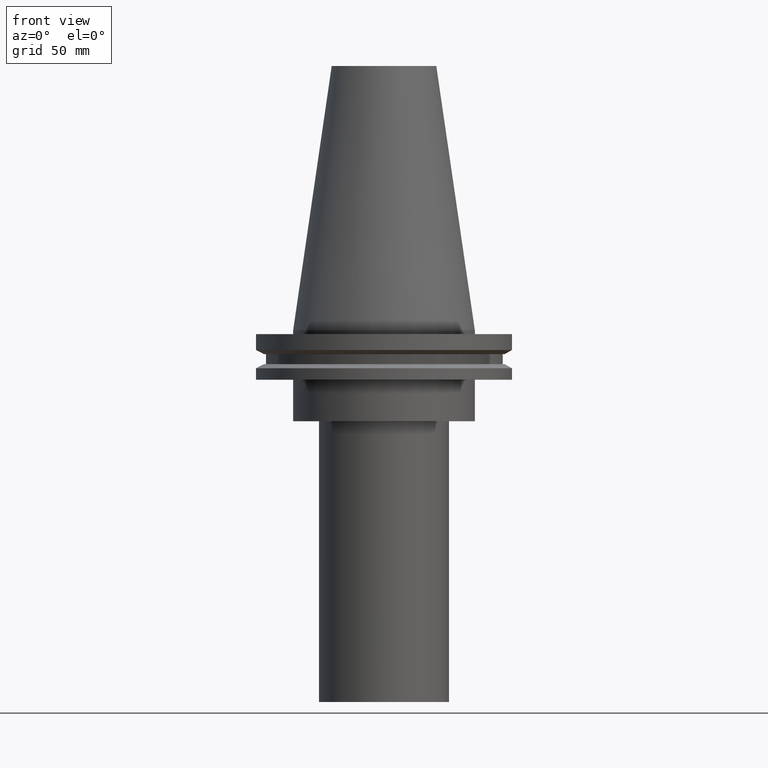
[diagram: clean part render]
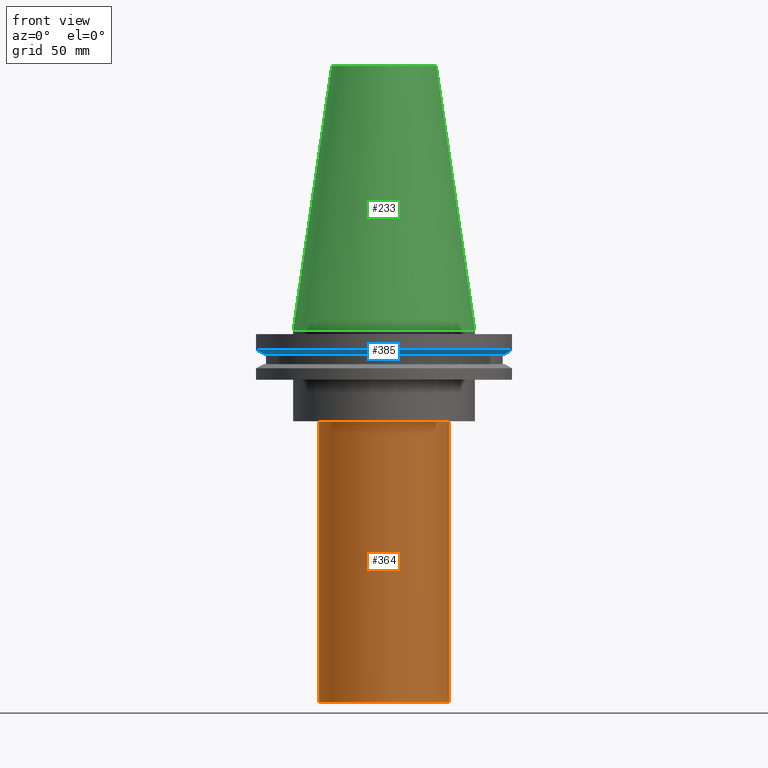
[diagram: same view with three faces highlighted in distinct colors, each labeled with its STEP entity id]
A machine part, front view with three faces highlighted in distinct colors.
Their STEP definitions:

[orange] entity #364 — the highlighted cylindrical surface (bore or boss wall) has radius 25 mm, axis along (-0, -0, 1).
#2 = CYLINDRICAL_SURFACE ( 'NONE', #19, 25.00000000000000000 ) ;
#19 = AXIS2_PLACEMENT_3D ( 'NONE', #243, #173, #180 ) ;
#93 = VERTEX_POINT ( 'NONE', #286 ) ;
#129 = DIRECTION ( 'NONE',  ( -0.000000000000000000, -0.000000000000000000, 1.000000000000000000 ) ) ;
#137 = CARTESIAN_POINT ( 'NONE',  ( 0.000000000000000000, 0.000000000000000000, -35.00000000000000000 ) ) ;
#151 = FACE_OUTER_BOUND ( 'NONE', #348, .T. ) ;
#173 = DIRECTION ( 'NONE',  ( -0.000000000000000000, -0.000000000000000000, 1.000000000000000000 ) ) ;
#180 = DIRECTION ( 'NONE',  ( 1.000000000000000000, 0.000000000000000000, 0.000000000000000000 ) ) ;
#185 = EDGE_LOOP ( 'NONE', ( #301 ) ) ;
#196 = EDGE_CURVE ( 'NONE', #213, #213, #297, .T. ) ;
#200 = EDGE_CURVE ( 'NONE', #93, #93, #218, .T. ) ;
#213 = VERTEX_POINT ( 'NONE', #342 ) ;
#215 = DIRECTION ( 'NONE',  ( -0.000000000000000000, -0.000000000000000000, 1.000000000000000000 ) ) ;
#218 = CIRCLE ( 'NONE', #331, 25.00000000000000000 ) ;
#238 = ORIENTED_EDGE ( 'NONE', *, *, #196, .F. ) ;
#243 = CARTESIAN_POINT ( 'NONE',  ( 0.000000000000000000, 0.000000000000000000, 0.000000000000000000 ) ) ;
#256 = DIRECTION ( 'NONE',  ( 1.000000000000000000, 0.000000000000000000, 0.000000000000000000 ) ) ;
#258 = CARTESIAN_POINT ( 'NONE',  ( 0.000000000000000000, 0.000000000000000000, -142.9999999999999716 ) ) ;
#272 = FACE_OUTER_BOUND ( 'NONE', #185, .T. ) ;
#280 = AXIS2_PLACEMENT_3D ( 'NONE', #137, #129, #256 ) ;
#286 = CARTESIAN_POINT ( 'NONE',  ( 25.00000000000000000, 0.000000000000000000, -142.9999999999999716 ) ) ;
#297 = CIRCLE ( 'NONE', #280, 25.00000000000000000 ) ;
#301 = ORIENTED_EDGE ( 'NONE', *, *, #200, .T. ) ;
#331 = AXIS2_PLACEMENT_3D ( 'NONE', #258, #215, #373 ) ;
#342 = CARTESIAN_POINT ( 'NONE',  ( 25.00000000000000000, 0.000000000000000000, -35.00000000000000000 ) ) ;
#348 = EDGE_LOOP ( 'NONE', ( #238 ) ) ;
#364 = ADVANCED_FACE ( 'NONE', ( #151, #272 ), #2, .T. ) ;
#373 = DIRECTION ( 'NONE',  ( 1.000000000000000000, 0.000000000000000000, 0.000000000000000000 ) ) ;

[blue] entity #385 — the highlighted conical surface has half-angle 60 deg.
#1 = ORIENTED_EDGE ( 'NONE', *, *, #270, .F. ) ;
#47 = DIRECTION ( 'NONE',  ( 1.000000000000000000, 0.000000000000000000, 0.000000000000000000 ) ) ;
#59 = VERTEX_POINT ( 'NONE', #338 ) ;
#118 = FACE_OUTER_BOUND ( 'NONE', #142, .T. ) ;
#120 = CARTESIAN_POINT ( 'NONE',  ( 0.000000000000000000, 0.000000000000000000, -9.204999999999991189 ) ) ;
#142 = EDGE_LOOP ( 'NONE', ( #1 ) ) ;
#145 = AXIS2_PLACEMENT_3D ( 'NONE', #190, #314, #160 ) ;
#160 = DIRECTION ( 'NONE',  ( 1.000000000000000000, 0.000000000000000000, 0.000000000000000000 ) ) ;
#163 = CONICAL_SURFACE ( 'NONE', #187, 46.43919780457007818, 1.047197551196575205 ) ;
#174 = DIRECTION ( 'NONE',  ( -0.000000000000000000, -0.000000000000000000, 1.000000000000000000 ) ) ;
#187 = AXIS2_PLACEMENT_3D ( 'NONE', #120, #174, #358 ) ;
#190 = CARTESIAN_POINT ( 'NONE',  ( 0.000000000000000000, 0.000000000000000000, -9.204999999999991189 ) ) ;
#194 = CIRCLE ( 'NONE', #145, 46.43919780457007818 ) ;
#199 = CIRCLE ( 'NONE', #202, 49.21500000000000341 ) ;
#202 = AXIS2_PLACEMENT_3D ( 'NONE', #237, #294, #47 ) ;
#211 = FACE_BOUND ( 'NONE', #244, .T. ) ;
#224 = EDGE_CURVE ( 'NONE', #253, #253, #194, .T. ) ;
#237 = CARTESIAN_POINT ( 'NONE',  ( 0.000000000000000000, 0.000000000000000000, -7.602389855251287187 ) ) ;
#244 = EDGE_LOOP ( 'NONE', ( #394 ) ) ;
#253 = VERTEX_POINT ( 'NONE', #334 ) ;
#270 = EDGE_CURVE ( 'NONE', #59, #59, #199, .T. ) ;
#294 = DIRECTION ( 'NONE',  ( -0.000000000000000000, -0.000000000000000000, 1.000000000000000000 ) ) ;
#314 = DIRECTION ( 'NONE',  ( -0.000000000000000000, -0.000000000000000000, 1.000000000000000000 ) ) ;
#334 = CARTESIAN_POINT ( 'NONE',  ( 46.43919780457007818, 0.000000000000000000, -9.204999999999991189 ) ) ;
#338 = CARTESIAN_POINT ( 'NONE',  ( 49.21500000000000341, 0.000000000000000000, -7.602389855251287187 ) ) ;
#358 = DIRECTION ( 'NONE',  ( 1.000000000000000000, 0.000000000000000000, 0.000000000000000000 ) ) ;
#385 = ADVANCED_FACE ( 'NONE', ( #118, #211 ), #163, .T. ) ;
#394 = ORIENTED_EDGE ( 'NONE', *, *, #224, .T. ) ;

[green] entity #233 — the highlighted conical surface has half-angle 8.297 deg.
#9 = CARTESIAN_POINT ( 'NONE',  ( 0.000000000000000000, 0.000000000000000000, 0.000000000000000000 ) ) ;
#16 = CARTESIAN_POINT ( 'NONE',  ( 0.000000000000000000, 0.000000000000000000, 101.5999999999999801 ) ) ;
#38 = CARTESIAN_POINT ( 'NONE',  ( 0.000000000000000000, 0.000000000000000000, 0.000000000000000000 ) ) ;
#54 = ORIENTED_EDGE ( 'NONE', *, *, #112, .T. ) ;
#78 = CIRCLE ( 'NONE', #234, 34.92499999999999005 ) ;
#81 = EDGE_CURVE ( 'NONE', #236, #236, #269, .T. ) ;
#82 = CARTESIAN_POINT ( 'NONE',  ( 20.10819343178871321, 0.000000000000000000, 101.5999999999999801 ) ) ;
#86 = EDGE_LOOP ( 'NONE', ( #54 ) ) ;
#112 = EDGE_CURVE ( 'NONE', #189, #189, #78, .T. ) ;
#131 = DIRECTION ( 'NONE',  ( 1.000000000000000000, 0.000000000000000000, 0.000000000000000000 ) ) ;
#149 = CONICAL_SURFACE ( 'NONE', #375, 34.92499999999999005, 0.1448138465474119452 ) ;
#184 = EDGE_LOOP ( 'NONE', ( #354 ) ) ;
#189 = VERTEX_POINT ( 'NONE', #255 ) ;
#223 = DIRECTION ( 'NONE',  ( -0.000000000000000000, -0.000000000000000000, 1.000000000000000000 ) ) ;
#225 = DIRECTION ( 'NONE',  ( -0.000000000000000000, -0.000000000000000000, 1.000000000000000000 ) ) ;
#233 = ADVANCED_FACE ( 'NONE', ( #316, #287 ), #149, .T. ) ;
#234 = AXIS2_PLACEMENT_3D ( 'NONE', #9, #225, #131 ) ;
#236 = VERTEX_POINT ( 'NONE', #82 ) ;
#249 = AXIS2_PLACEMENT_3D ( 'NONE', #16, #223, #343 ) ;
#255 = CARTESIAN_POINT ( 'NONE',  ( 34.92499999999999005, 0.000000000000000000, 0.000000000000000000 ) ) ;
#269 = CIRCLE ( 'NONE', #249, 20.10819343178871321 ) ;
#287 = FACE_OUTER_BOUND ( 'NONE', #86, .T. ) ;
#289 = DIRECTION ( 'NONE',  ( 0.000000000000000000, 0.000000000000000000, -1.000000000000000000 ) ) ;
#316 = FACE_BOUND ( 'NONE', #184, .T. ) ;
#324 = DIRECTION ( 'NONE',  ( -1.000000000000000000, 0.000000000000000000, 0.000000000000000000 ) ) ;
#343 = DIRECTION ( 'NONE',  ( 1.000000000000000000, 0.000000000000000000, 0.000000000000000000 ) ) ;
#354 = ORIENTED_EDGE ( 'NONE', *, *, #81, .F. ) ;
#375 = AXIS2_PLACEMENT_3D ( 'NONE', #38, #289, #324 ) ;